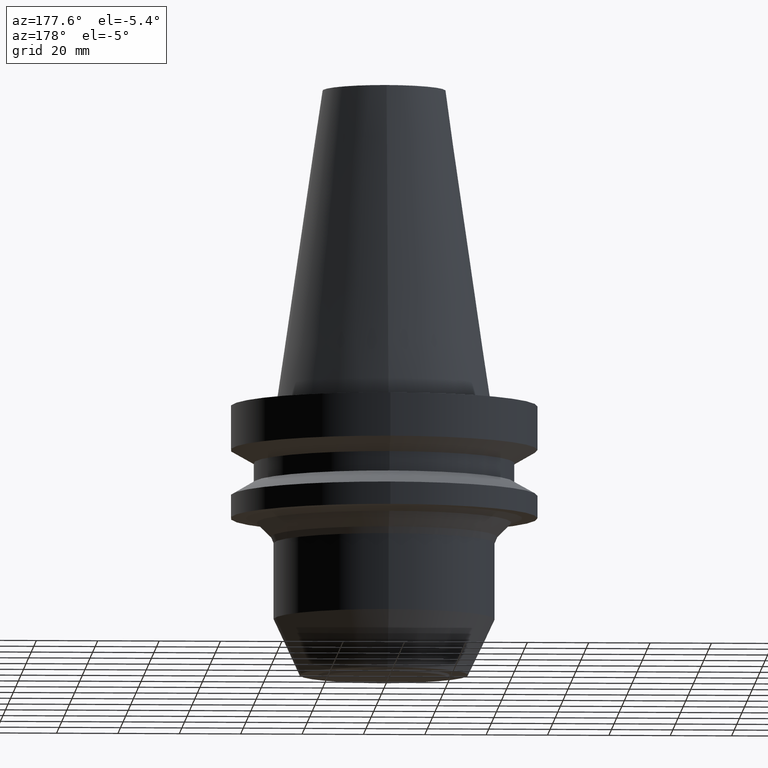
[diagram: clean part render]
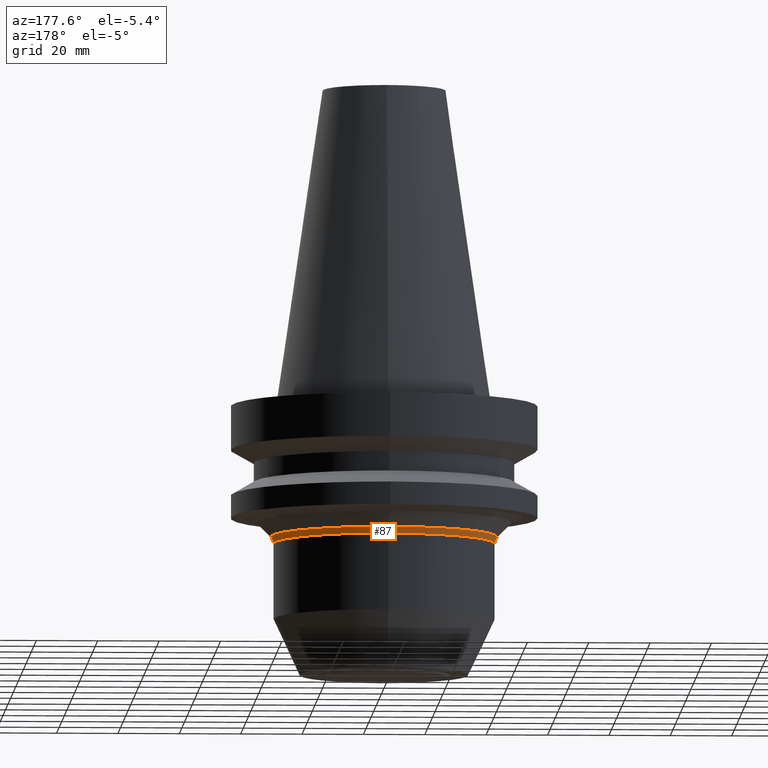
[diagram: same view with one face highlighted and labeled with its STEP entity id]
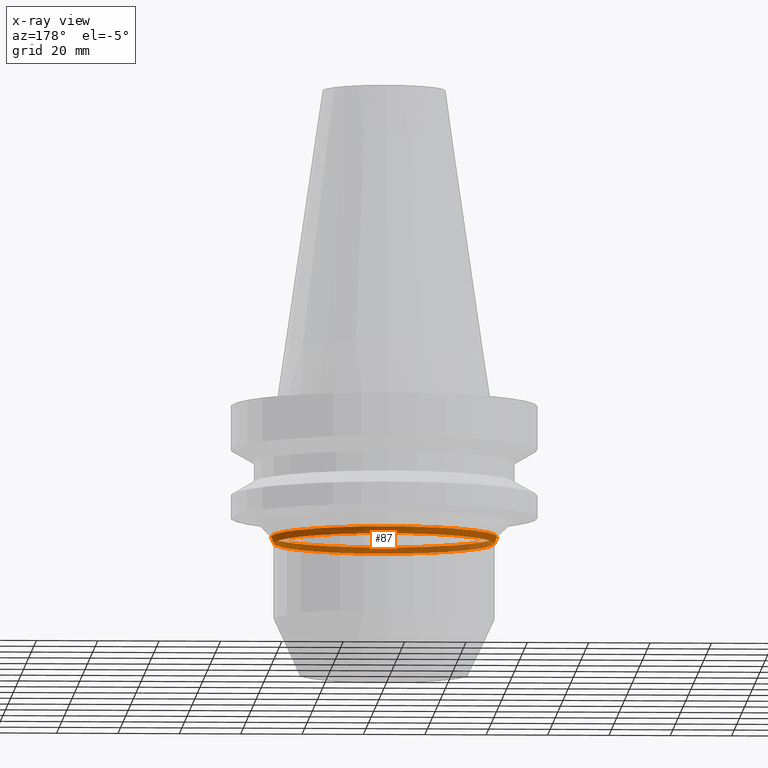
[diagram: x-ray of the same camera — body ghosted, the highlighted face saturated]
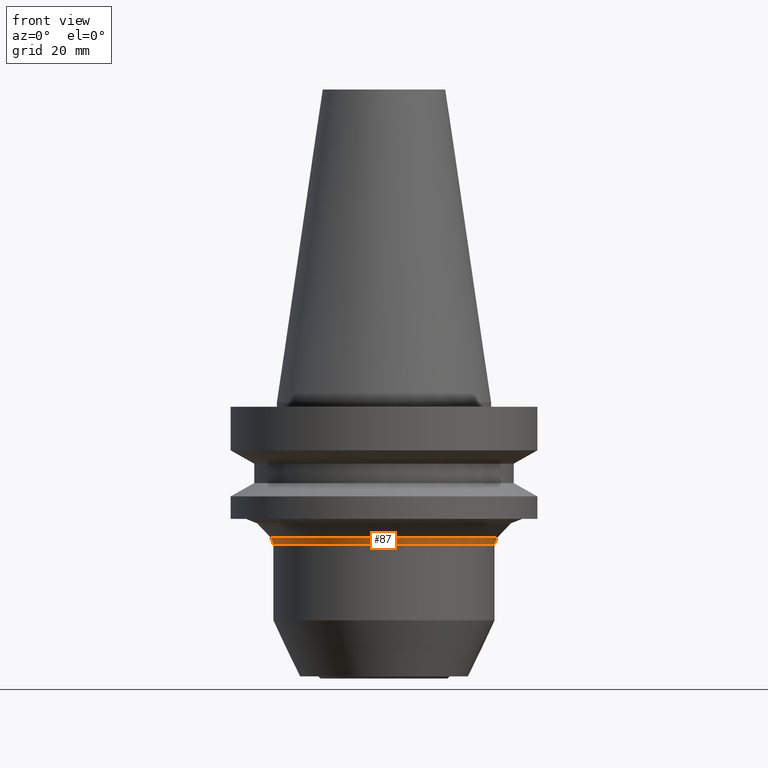
[diagram: same view with one face highlighted and labeled with its STEP entity id]
A machine part, auxiliary view. The second image highlights one B-rep face of the part: STEP entity #87.
The next image is the same camera in x-ray: the body ghosted, the highlighted face saturated — about 44% of this face is hidden behind the body in this view.
A second angle (front view) of the same face is appended — the face is thin or edge-on in the first view.
In plain terms, the highlighted conical surface has half-angle 22.5 deg.
Its self-contained STEP definition (entity closure, byte-faithful):
#87=ADVANCED_FACE('',(#129,#130),#131,.T.);
#129=FACE_BOUND('',#181,.T.);
#130=FACE_BOUND('',#182,.T.);
#131=CONICAL_SURFACE('',#183,36.4393398282178,0.392699081698704);
#181=EDGE_LOOP('',(#257));
#182=EDGE_LOOP('',(#258));
#183=AXIS2_PLACEMENT_3D('',#259,#260,#261);
#257=ORIENTED_EDGE('',*,*,#298,.F.);
#258=ORIENTED_EDGE('',*,*,#297,.T.);
#259=CARTESIAN_POINT('',(2.76659839086262E-015,5.53319678172524E-015,-45.1819805153426));
#260=DIRECTION('',(-6.12323399573677E-017,-1.22464679914707E-016,1.0));
#261=DIRECTION('',(-1.23259516440763E-032,1.0,1.22464679914707E-016));
#297=EDGE_CURVE('',#325,#325,#326,.T.);
#298=EDGE_CURVE('',#327,#327,#328,.T.);
#325=VERTEX_POINT('',#359);
#326=CIRCLE('',#360,36.8786796564379);
#327=VERTEX_POINT('',#361);
#328=CIRCLE('',#362,35.9999999999977);
#359=CARTESIAN_POINT('',(2.70165168664497E-015,36.8786796564379,-44.1213203435629));
#360=AXIS2_PLACEMENT_3D('',#404,#405,#406);
#361=CARTESIAN_POINT('',(2.83154509508027E-015,35.9999999999977,-46.2426406871223));
#362=AXIS2_PLACEMENT_3D('',#407,#408,#409);
#404=CARTESIAN_POINT('',(2.70165168664497E-015,5.40330337328993E-015,-44.1213203435629));
#405=DIRECTION('',(6.12323399573677E-017,1.22464679914714E-016,-1.0));
#406=DIRECTION('',(-1.23259516440784E-032,1.0,1.22464679914714E-016));
#407=CARTESIAN_POINT('',(2.83154509508027E-015,5.66309019016055E-015,-46.2426406871223));
#408=DIRECTION('',(6.12323399573677E-017,1.22464679914701E-016,-1.0));
#409=DIRECTION('',(-1.23259516440791E-032,1.0,1.22464679914701E-016));